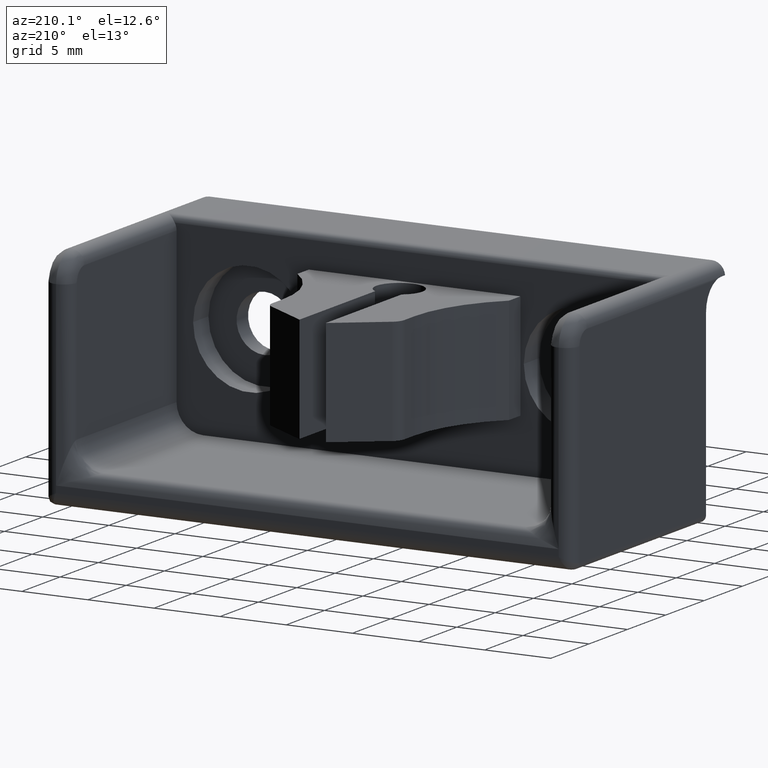
[diagram: clean part render]
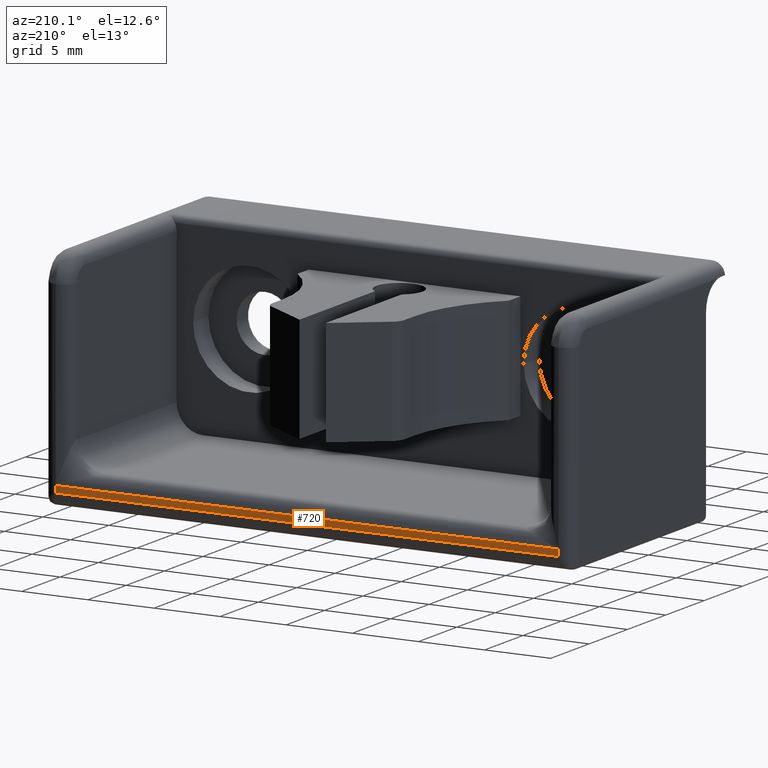
[diagram: same view with one face highlighted and labeled with its STEP entity id]
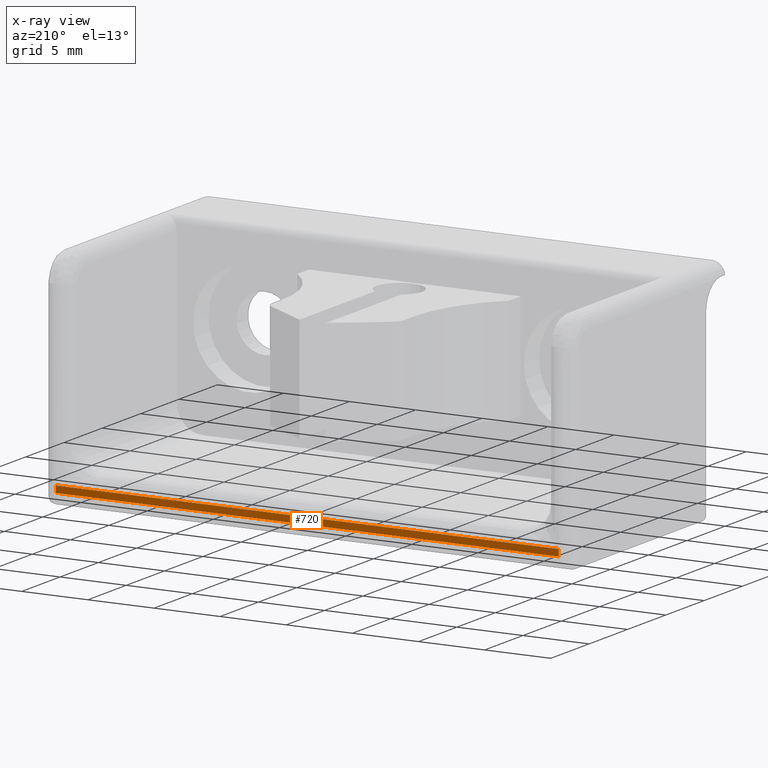
[diagram: x-ray of the same camera — body ghosted, the highlighted face saturated]
A machine part, auxiliary view. The second image highlights one B-rep face of the part: STEP entity #720.
The next image is the same camera in x-ray: the body ghosted, the highlighted face saturated — about 0% of this face is hidden behind the body in this view.
In plain terms, the highlighted planar face has unit normal (0, -1, 0).
Its self-contained STEP definition (entity closure, byte-faithful):
#681=CARTESIAN_POINT('',(-20.900000000000006,9.999999999999995,0.975000000000001));
#682=DIRECTION('',(0.0,-1.0,0.0));
#683=DIRECTION('',(1.0,0.0,0.0));
#684=AXIS2_PLACEMENT_3D('',#681,#682,#683);
#685=PLANE('',#684);
#686=CARTESIAN_POINT('',(-19.000000000000004,9.999999999999991,1.000000000000001));
#687=VERTEX_POINT('',#686);
#688=CARTESIAN_POINT('',(-19.000000000000004,9.999999999999989,1.500000000000000));
#689=VERTEX_POINT('',#688);
#690=CARTESIAN_POINT('',(-19.000000000000007,9.999999999999989,1.0));
#691=DIRECTION('',(0.0,0.0,1.0));
#692=VECTOR('',#691,0.500000000000001);
#693=LINE('',#690,#692);
#694=EDGE_CURVE('',#687,#689,#693,.T.);
#695=ORIENTED_EDGE('',*,*,#694,.T.);
#696=CARTESIAN_POINT('',(19.000000000000004,9.999999999999995,1.500000000000001));
#697=VERTEX_POINT('',#696);
#698=CARTESIAN_POINT('',(-19.000000000000007,9.999999999999995,1.500000000000000));
#699=DIRECTION('',(1.0,0.0,0.0));
#700=VECTOR('',#699,38.000000000000014);
#701=LINE('',#698,#700);
#702=EDGE_CURVE('',#689,#697,#701,.T.);
#703=ORIENTED_EDGE('',*,*,#702,.T.);
#704=CARTESIAN_POINT('',(19.000000000000004,9.999999999999995,1.000000000000001));
#705=VERTEX_POINT('',#704);
#706=CARTESIAN_POINT('',(19.000000000000007,9.999999999999995,1.500000000000002));
#707=DIRECTION('',(0.0,0.0,-1.0));
#708=VECTOR('',#707,0.500000000000001);
#709=LINE('',#706,#708);
#710=EDGE_CURVE('',#697,#705,#709,.T.);
#711=ORIENTED_EDGE('',*,*,#710,.T.);
#712=CARTESIAN_POINT('',(19.000000000000007,9.999999999999995,1.000000000000001));
#713=DIRECTION('',(-1.0,0.0,0.0));
#714=VECTOR('',#713,38.000000000000014);
#715=LINE('',#712,#714);
#716=EDGE_CURVE('',#705,#687,#715,.T.);
#717=ORIENTED_EDGE('',*,*,#716,.T.);
#718=EDGE_LOOP('',(#695,#703,#711,#717));
#719=FACE_OUTER_BOUND('',#718,.T.);
#720=ADVANCED_FACE('',(#719),#685,.F.);